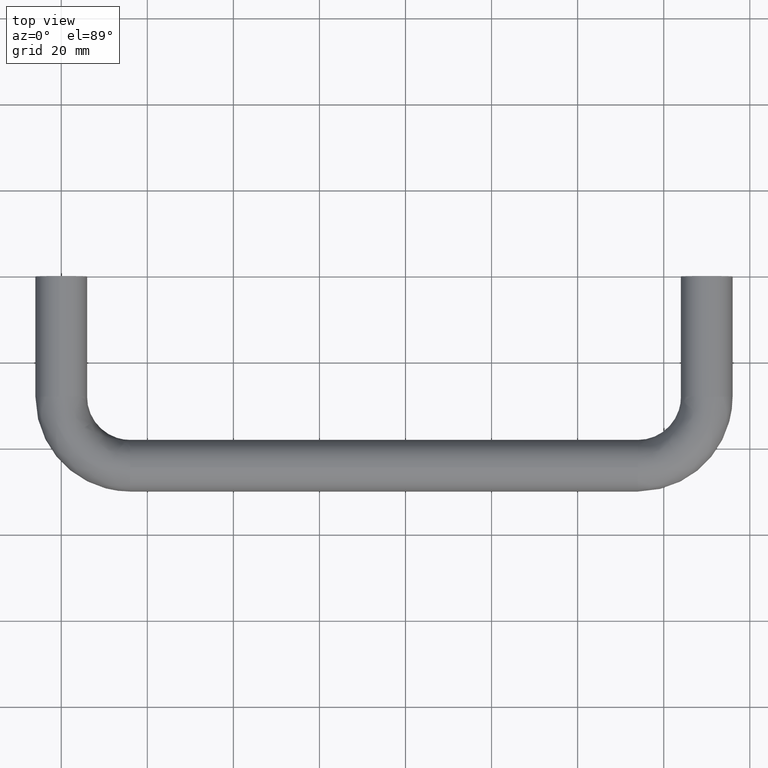
[diagram: clean part render]
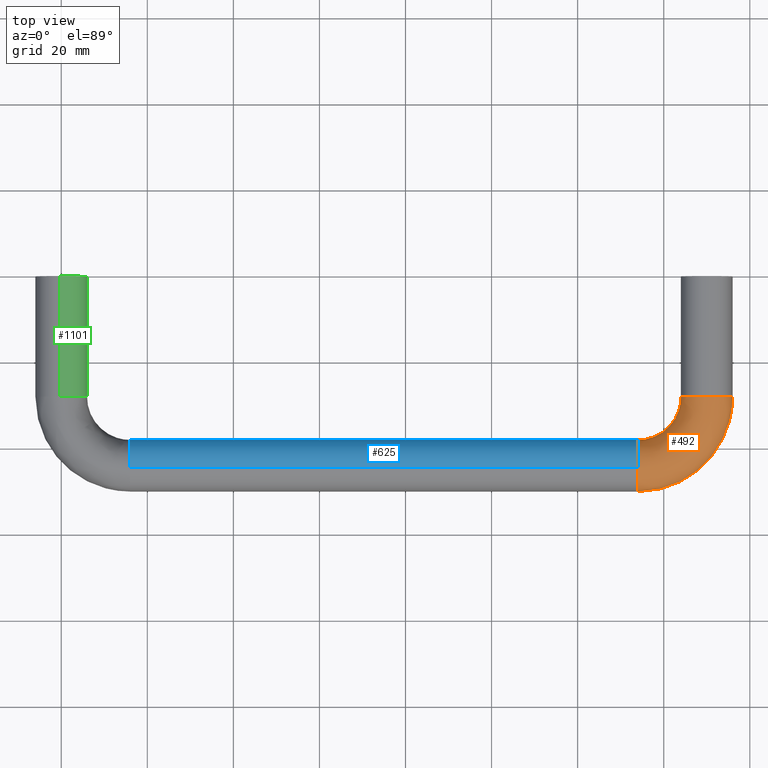
[diagram: same view with three faces highlighted in distinct colors, each labeled with its STEP entity id]
A machine part, top view with three faces highlighted in distinct colors.
Their STEP definitions:

[orange] entity #492 — the highlighted face is a freeform B-spline surface patch.
#295=CARTESIAN_POINT('',(144.0,-28.000000000368381,-4.420586E-016));
#296=VERTEX_POINT('',#295);
#312=CARTESIAN_POINT('',(150.470754574599310,-27.999985489720380,5.981504002379788));
#313=VERTEX_POINT('',#312);
#314=CARTESIAN_POINT('',(150.470754574599340,-27.999985489720387,5.981504002379788));
#315=CARTESIAN_POINT('',(150.235740642154520,-27.999986016738429,6.000000000000680));
#316=CARTESIAN_POINT('',(149.999999999983600,-27.999986545386118,6.000000000000666));
#317=CARTESIAN_POINT('',(144.000000000000060,-28.000000000368384,6.000000000000321));
#318=CARTESIAN_POINT('',(144.0,-28.000000000368381,-4.420586E-016));
#326=(BOUNDED_CURVE()B_SPLINE_CURVE(2,(#314,#315,#316,#317,#318),.UNSPECIFIED.,.F.,.U.)B_SPLINE_CURVE_WITH_KNOTS((3,2,3),(0.472662601251207,0.500000000000000,1.0),.UNSPECIFIED.)CURVE()GEOMETRIC_REPRESENTATION_ITEM()RATIONAL_B_SPLINE_CURVE((0.969723356156866,0.983986122572958,1.0,0.707106781186548,1.0))REPRESENTATION_ITEM(''));
#327=EDGE_CURVE('',#313,#296,#326,.T.);
#362=CARTESIAN_POINT('',(155.999999999967090,-27.999973090403870,-7.347638E-016));
#363=VERTEX_POINT('',#362);
#383=CARTESIAN_POINT('',(155.999999999967090,-27.999973090403870,-7.347638E-016));
#384=CARTESIAN_POINT('',(155.999999999967140,-27.999973090403873,5.546342949717099));
#385=CARTESIAN_POINT('',(150.470754574599310,-27.999985489720384,5.981504002379788));
#393=(BOUNDED_CURVE()B_SPLINE_CURVE(2,(#383,#384,#385),.UNSPECIFIED.,.F.,.U.)B_SPLINE_CURVE_WITH_KNOTS((3,3),(0.0,0.472662601251207),.UNSPECIFIED.)CURVE()GEOMETRIC_REPRESENTATION_ITEM()RATIONAL_B_SPLINE_CURVE((1.0,0.723120658613589,0.969723356156866))REPRESENTATION_ITEM(''));
#394=EDGE_CURVE('',#363,#313,#393,.T.);
#399=CARTESIAN_POINT('',(132.470154332437600,-49.946744000726859,-0.167740426151150));
#400=CARTESIAN_POINT('',(157.705853460307820,-51.705853460307821,-0.167740426151149));
#401=CARTESIAN_POINT('',(155.946744000726880,-26.470154332437591,-0.167740426151150));
#402=CARTESIAN_POINT('',(132.470154332437630,-49.946744000726845,-0.084358652198840));
#403=CARTESIAN_POINT('',(157.705853460307850,-51.705853460307829,-0.084358652198840));
#404=CARTESIAN_POINT('',(155.946744000726820,-26.470154332437588,-0.084358652198840));
#405=CARTESIAN_POINT('',(132.470154332437570,-49.946744000726852,5.999999999999997));
#406=CARTESIAN_POINT('',(157.705853460307820,-51.705853460307814,5.999999999999999));
#407=CARTESIAN_POINT('',(155.946744000726910,-26.470154332437588,5.999999999999998));
#408=CARTESIAN_POINT('',(132.887384969045510,-43.961268364164987,5.999999999999998));
#409=CARTESIAN_POINT('',(151.240620698405680,-45.240620698405699,5.999999999999998));
#410=CARTESIAN_POINT('',(149.961268364164990,-26.887384969045527,5.999999999999999));
#411=CARTESIAN_POINT('',(133.304615605653450,-37.975792727603107,5.999999999999997));
#412=CARTESIAN_POINT('',(144.775387936503590,-38.775387936503549,5.999999999999999));
#413=CARTESIAN_POINT('',(143.975792727603110,-27.304615605653442,5.999999999999998));
#414=CARTESIAN_POINT('',(133.304615605653510,-37.975792727603114,-0.084358652198840));
#415=CARTESIAN_POINT('',(144.775387936503560,-38.775387936503563,-0.084358652198840));
#416=CARTESIAN_POINT('',(143.975792727603080,-27.304615605653449,-0.084358652198840));
#417=CARTESIAN_POINT('',(133.304615605653420,-37.975792727603107,-0.167740426151150));
#418=CARTESIAN_POINT('',(144.775387936503590,-38.775387936503563,-0.167740426151150));
#419=CARTESIAN_POINT('',(143.975792727603140,-27.304615605653449,-0.167740426151150));
#427=(BOUNDED_SURFACE()B_SPLINE_SURFACE(2,2,((#399,#402,#405,#408,#411,#414,#417),(#400,#403,#406,#409,#412,#415,#418),(#401,#404,#407,#410,#413,#416,#419)),.UNSPECIFIED.,.F.,.F.,.U.)B_SPLINE_SURFACE_WITH_KNOTS((3,3),(3,1,2,1,3),(0.0,40.092296910875270),(0.0,0.198822509939086,10.139948006893400,20.081073503847708,20.279896013786800),.UNSPECIFIED.)GEOMETRIC_REPRESENTATION_ITEM()RATIONAL_B_SPLINE_SURFACE(((0.927078278878390,0.921710467872278,0.647952106560563,0.916342656866165,0.647952106560563,0.921710467872278,0.927078278878390),(0.608370985386885,0.604848499157232,0.425201701444961,0.601326012927580,0.425201701444961,0.604848499157232,0.608370985386885),(0.927078278878390,0.921710467872278,0.647952106560563,0.916342656866165,0.647952106560563,0.921710467872278,0.927078278878390)))REPRESENTATION_ITEM('')SURFACE());
#428=CARTESIAN_POINT('',(133.999973486176490,-49.999999999968040,-7.347638E-016));
#429=VERTEX_POINT('',#428);
#430=CARTESIAN_POINT('',(133.999973486176510,-49.999999999968033,-7.347638E-016));
#431=CARTESIAN_POINT('',(156.000026909636770,-50.000026513863915,-7.347638E-016));
#432=CARTESIAN_POINT('',(155.999999999967090,-27.999973090403863,-7.347638E-016));
#440=(BOUNDED_CURVE()B_SPLINE_CURVE(2,(#430,#431,#432),.UNSPECIFIED.,.F.,.U.)B_SPLINE_CURVE_WITH_KNOTS((3,3),(-1.734752043948219,-0.265247937358810),.UNSPECIFIED.)CURVE()GEOMETRIC_REPRESENTATION_ITEM()RATIONAL_B_SPLINE_CURVE((0.889030167379974,0.628638499101433,0.889030174004650))REPRESENTATION_ITEM(''));
#441=EDGE_CURVE('',#429,#363,#440,.T.);
#442=ORIENTED_EDGE('',*,*,#441,.T.);
#443=ORIENTED_EDGE('',*,*,#394,.T.);
#444=ORIENTED_EDGE('',*,*,#327,.T.);
#445=CARTESIAN_POINT('',(134.000000000131590,-38.0,-2.210293E-016));
#446=VERTEX_POINT('',#445);
#447=CARTESIAN_POINT('',(134.000000000131620,-37.999999999999993,-8.841173E-016));
#448=CARTESIAN_POINT('',(143.999999999631630,-37.999999999868358,-8.689584E-016));
#449=CARTESIAN_POINT('',(144.0,-28.000000000368374,-8.841173E-016));
#457=(BOUNDED_CURVE()B_SPLINE_CURVE(2,(#447,#448,#449),.UNSPECIFIED.,.F.,.U.)B_SPLINE_CURVE_WITH_KNOTS((3,3),(-1.734750791644724,-0.265249208379877),.UNSPECIFIED.)CURVE()GEOMETRIC_REPRESENTATION_ITEM()RATIONAL_B_SPLINE_CURVE((0.889029723571595,0.628638946226510,0.889029723562876))REPRESENTATION_ITEM(''));
#458=EDGE_CURVE('',#446,#296,#457,.T.);
#459=ORIENTED_EDGE('',*,*,#458,.F.);
#460=CARTESIAN_POINT('',(133.999985703023610,-44.470754574599333,5.981504002379809));
#461=VERTEX_POINT('',#460);
#462=CARTESIAN_POINT('',(133.999985703023640,-44.470754574599326,5.981504002379809));
#463=CARTESIAN_POINT('',(133.999986222286030,-44.235740642154759,6.000000000000660));
#464=CARTESIAN_POINT('',(133.999986743154100,-43.999999999984077,6.000000000000647));
#465=CARTESIAN_POINT('',(134.000000000131650,-38.000000000000021,6.000000000000312));
#466=CARTESIAN_POINT('',(134.000000000131590,-38.0,-2.210293E-016));
#474=(BOUNDED_CURVE()B_SPLINE_CURVE(2,(#462,#463,#464,#465,#466),.UNSPECIFIED.,.F.,.U.)B_SPLINE_CURVE_WITH_KNOTS((3,2,3),(0.472662601251237,0.500000000000000,1.0),.UNSPECIFIED.)CURVE()GEOMETRIC_REPRESENTATION_ITEM()RATIONAL_B_SPLINE_CURVE((0.969723356156897,0.983986122572976,1.0,0.707106781186548,1.0))REPRESENTATION_ITEM(''));
#475=EDGE_CURVE('',#461,#446,#474,.T.);
#476=ORIENTED_EDGE('',*,*,#475,.F.);
#477=CARTESIAN_POINT('',(133.999973486176490,-49.999999999968040,-7.347638E-016));
#478=CARTESIAN_POINT('',(133.999973486176540,-49.999999999968075,5.546342949717582));
#479=CARTESIAN_POINT('',(133.999985703023580,-44.470754574599319,5.981504002379809));
#487=(BOUNDED_CURVE()B_SPLINE_CURVE(2,(#477,#478,#479),.UNSPECIFIED.,.F.,.U.)B_SPLINE_CURVE_WITH_KNOTS((3,3),(0.0,0.472662601251237),.UNSPECIFIED.)CURVE()GEOMETRIC_REPRESENTATION_ITEM()RATIONAL_B_SPLINE_CURVE((1.0,0.723120658613572,0.969723356156897))REPRESENTATION_ITEM(''));
#488=EDGE_CURVE('',#429,#461,#487,.T.);
#489=ORIENTED_EDGE('',*,*,#488,.F.);
#490=EDGE_LOOP('',(#442,#443,#444,#459,#476,#489));
#491=FACE_OUTER_BOUND('',#490,.T.);
#492=ADVANCED_FACE('',(#491),#427,.T.);

[blue] entity #625 — the highlighted face is a freeform B-spline surface patch.
#445=CARTESIAN_POINT('',(134.000000000131590,-38.0,-2.210293E-016));
#446=VERTEX_POINT('',#445);
#460=CARTESIAN_POINT('',(133.999985703023610,-44.470754574599333,5.981504002379809));
#461=VERTEX_POINT('',#460);
#462=CARTESIAN_POINT('',(133.999985703023640,-44.470754574599326,5.981504002379809));
#463=CARTESIAN_POINT('',(133.999986222286030,-44.235740642154759,6.000000000000660));
#464=CARTESIAN_POINT('',(133.999986743154100,-43.999999999984077,6.000000000000647));
#465=CARTESIAN_POINT('',(134.000000000131650,-38.000000000000021,6.000000000000312));
#466=CARTESIAN_POINT('',(134.000000000131590,-38.0,-2.210293E-016));
#474=(BOUNDED_CURVE()B_SPLINE_CURVE(2,(#462,#463,#464,#465,#466),.UNSPECIFIED.,.F.,.U.)B_SPLINE_CURVE_WITH_KNOTS((3,2,3),(0.472662601251237,0.500000000000000,1.0),.UNSPECIFIED.)CURVE()GEOMETRIC_REPRESENTATION_ITEM()RATIONAL_B_SPLINE_CURVE((0.969723356156897,0.983986122572976,1.0,0.707106781186548,1.0))REPRESENTATION_ITEM(''));
#475=EDGE_CURVE('',#461,#446,#474,.T.);
#523=CARTESIAN_POINT('',(133.999987783284500,-43.529245425400553,-5.981504002381058));
#524=VERTEX_POINT('',#523);
#540=CARTESIAN_POINT('',(134.000000000131590,-38.0,-2.210293E-016));
#541=CARTESIAN_POINT('',(134.000000000131620,-37.999999999999993,-5.546342949746755));
#542=CARTESIAN_POINT('',(133.999987783284550,-43.529245425400489,-5.981504002381636));
#550=(BOUNDED_CURVE()B_SPLINE_CURVE(2,(#540,#541,#542),.UNSPECIFIED.,.F.,.U.)B_SPLINE_CURVE_WITH_KNOTS((3,3),(0.0,0.472662601253055),.UNSPECIFIED.)CURVE()GEOMETRIC_REPRESENTATION_ITEM()RATIONAL_B_SPLINE_CURVE((1.0,0.723120658612506,0.969723356158795))REPRESENTATION_ITEM(''));
#551=EDGE_CURVE('',#446,#524,#550,.T.);
#559=CARTESIAN_POINT('',(13.049999999604820,-43.529245425632929,-5.981504002398766));
#560=CARTESIAN_POINT('',(13.049999999604820,-37.547741423234164,-5.510749428031693));
#561=CARTESIAN_POINT('',(13.049999999604820,-38.018495997601242,0.470754574367073));
#562=CARTESIAN_POINT('',(13.049999999604820,-38.489250571968299,6.452258576765838));
#563=CARTESIAN_POINT('',(13.049999999604820,-44.470754574367071,5.981504002398766));
#564=CARTESIAN_POINT('',(137.023750000144790,-43.529245425632922,-5.981504002398766));
#565=CARTESIAN_POINT('',(137.023750000144790,-37.547741423234150,-5.510749428031693));
#566=CARTESIAN_POINT('',(137.023750000144790,-38.018495997601221,0.470754574367073));
#567=CARTESIAN_POINT('',(137.023750000144790,-38.489250571968284,6.452258576765838));
#568=CARTESIAN_POINT('',(137.023750000144790,-44.470754574367056,5.981504002398766));
#576=(BOUNDED_SURFACE()B_SPLINE_SURFACE(2,1,((#559,#564),(#560,#565),(#561,#566),(#562,#567),(#563,#568)),.UNSPECIFIED.,.F.,.F.,.U.)B_SPLINE_SURFACE_WITH_KNOTS((3,2,3),(2,2),(0.0,9.941125496954275,19.882250993908549),(0.0,123.973750000539990),.UNSPECIFIED.)GEOMETRIC_REPRESENTATION_ITEM()RATIONAL_B_SPLINE_SURFACE(((1.0,1.0),(0.707106781186548,0.707106781186548),(1.0,1.0),(0.707106781186548,0.707106781186548),(1.0,1.0)))REPRESENTATION_ITEM('')SURFACE());
#577=ORIENTED_EDGE('',*,*,#551,.T.);
#578=CARTESIAN_POINT('',(15.999999999718140,-43.529245425400610,-5.981504002380483));
#579=VERTEX_POINT('',#578);
#580=CARTESIAN_POINT('',(15.999999999718140,-43.529245425400610,-5.981504002380483));
#581=CARTESIAN_POINT('',(133.999987783284500,-43.529245425400553,-5.981504002381058));
#582=QUASI_UNIFORM_CURVE('',1,(#580,#581),.UNSPECIFIED.,.F.,.U.);
#583=EDGE_CURVE('',#579,#524,#582,.T.);
#584=ORIENTED_EDGE('',*,*,#583,.F.);
#585=CARTESIAN_POINT('',(15.999999999617669,-38.0,-4.410686E-016));
#586=VERTEX_POINT('',#585);
#587=CARTESIAN_POINT('',(15.999999999617669,-38.0,-4.410686E-016));
#588=CARTESIAN_POINT('',(15.999999999617668,-38.0,-5.546342949733146));
#589=CARTESIAN_POINT('',(15.999999999718137,-43.529245425400610,-5.981504002380483));
#597=(BOUNDED_CURVE()B_SPLINE_CURVE(2,(#587,#588,#589),.UNSPECIFIED.,.F.,.U.)B_SPLINE_CURVE_WITH_KNOTS((3,3),(0.0,0.472662601252217),.UNSPECIFIED.)CURVE()GEOMETRIC_REPRESENTATION_ITEM()RATIONAL_B_SPLINE_CURVE((1.0,0.723120658612998,0.969723356157920))REPRESENTATION_ITEM(''));
#598=EDGE_CURVE('',#586,#579,#597,.T.);
#599=ORIENTED_EDGE('',*,*,#598,.F.);
#600=CARTESIAN_POINT('',(15.999999999735239,-44.470754574599397,5.981504002380483));
#601=VERTEX_POINT('',#600);
#602=CARTESIAN_POINT('',(15.999999999735243,-44.470754574599397,5.981504002380483));
#603=CARTESIAN_POINT('',(15.999999999730976,-44.235740642162725,5.999999999999999));
#604=CARTESIAN_POINT('',(15.999999999726690,-44.000000000000007,5.999999999999999));
#605=CARTESIAN_POINT('',(15.999999999617666,-38.0,6.0));
#606=CARTESIAN_POINT('',(15.999999999617669,-38.0,-4.410686E-016));
#614=(BOUNDED_CURVE()B_SPLINE_CURVE(2,(#602,#603,#604,#605,#606),.UNSPECIFIED.,.F.,.U.)B_SPLINE_CURVE_WITH_KNOTS((3,2,3),(0.472662601252218,0.500000000000000,1.0),.UNSPECIFIED.)CURVE()GEOMETRIC_REPRESENTATION_ITEM()RATIONAL_B_SPLINE_CURVE((0.969723356157921,0.983986122573550,1.0,0.707106781186548,1.0))REPRESENTATION_ITEM(''));
#615=EDGE_CURVE('',#601,#586,#614,.T.);
#616=ORIENTED_EDGE('',*,*,#615,.F.);
#617=CARTESIAN_POINT('',(15.999999999735239,-44.470754574599397,5.981504002380483));
#618=CARTESIAN_POINT('',(133.999985703023610,-44.470754574599333,5.981504002379809));
#619=QUASI_UNIFORM_CURVE('',1,(#617,#618),.UNSPECIFIED.,.F.,.U.);
#620=EDGE_CURVE('',#601,#461,#619,.T.);
#621=ORIENTED_EDGE('',*,*,#620,.T.);
#622=ORIENTED_EDGE('',*,*,#475,.T.);
#623=EDGE_LOOP('',(#577,#584,#599,#616,#621,#622));
#624=FACE_OUTER_BOUND('',#623,.T.);
#625=ADVANCED_FACE('',(#624),#576,.T.);

[green] entity #1101 — the highlighted face is a freeform B-spline surface patch.
#727=CARTESIAN_POINT('',(6.000000000000004,-28.000000000032060,-2.205343E-016));
#728=VERTEX_POINT('',#727);
#742=CARTESIAN_POINT('',(-0.470754574599390,-28.000000000054708,5.981504002380483));
#743=VERTEX_POINT('',#742);
#744=CARTESIAN_POINT('',(-0.470754574599390,-28.000000000054705,5.981504002380483));
#745=CARTESIAN_POINT('',(-0.235740642162715,-28.000000000053888,6.0));
#746=CARTESIAN_POINT('',(3.428898E-015,-28.000000000053060,5.999999999999999));
#747=CARTESIAN_POINT('',(6.000000000000004,-28.000000000032060,6.0));
#748=CARTESIAN_POINT('',(6.000000000000004,-28.000000000032060,-2.205343E-016));
#756=(BOUNDED_CURVE()B_SPLINE_CURVE(2,(#744,#745,#746,#747,#748),.UNSPECIFIED.,.F.,.U.)B_SPLINE_CURVE_WITH_KNOTS((3,2,3),(0.472662601252217,0.500000000000000,1.0),.UNSPECIFIED.)CURVE()GEOMETRIC_REPRESENTATION_ITEM()RATIONAL_B_SPLINE_CURVE((0.969723356157920,0.983986122573550,1.0,0.707106781186548,1.0))REPRESENTATION_ITEM(''));
#757=EDGE_CURVE('',#743,#728,#756,.T.);
#805=CARTESIAN_POINT('',(0.470754574599396,-28.000000000051418,-5.981504002380483));
#806=VERTEX_POINT('',#805);
#822=CARTESIAN_POINT('',(6.000000000000004,-28.000000000032060,-2.205343E-016));
#823=CARTESIAN_POINT('',(6.000000000000004,-28.000000000032060,-5.546342949733154));
#824=CARTESIAN_POINT('',(0.470754574599397,-28.000000000051415,-5.981504002380484));
#832=(BOUNDED_CURVE()B_SPLINE_CURVE(2,(#822,#823,#824),.UNSPECIFIED.,.F.,.U.)B_SPLINE_CURVE_WITH_KNOTS((3,3),(0.0,0.472662601252217),.UNSPECIFIED.)CURVE()GEOMETRIC_REPRESENTATION_ITEM()RATIONAL_B_SPLINE_CURVE((1.0,0.723120658612997,0.969723356157920))REPRESENTATION_ITEM(''));
#833=EDGE_CURVE('',#728,#806,#832,.T.);
#1035=CARTESIAN_POINT('',(0.470754574367073,0.700000000001853,-5.981504002398766));
#1036=CARTESIAN_POINT('',(6.452258576765839,0.700000000001854,-5.510749428031692));
#1037=CARTESIAN_POINT('',(5.981504002398766,0.700000000001854,0.470754574367073));
#1038=CARTESIAN_POINT('',(5.510749428031692,0.700000000001853,6.452258576765839));
#1039=CARTESIAN_POINT('',(-0.470754574367073,0.700000000001853,5.981504002398766));
#1040=CARTESIAN_POINT('',(0.470754574367077,-28.717500000075962,-5.981504002398766));
#1041=CARTESIAN_POINT('',(6.452258576765843,-28.717500000075955,-5.510749428031692));
#1042=CARTESIAN_POINT('',(5.981504002398769,-28.717500000075962,0.470754574367073));
#1043=CARTESIAN_POINT('',(5.510749428031697,-28.717500000075955,6.452258576765839));
#1044=CARTESIAN_POINT('',(-0.470754574367070,-28.717500000075962,5.981504002398766));
#1052=(BOUNDED_SURFACE()B_SPLINE_SURFACE(2,1,((#1035,#1040),(#1036,#1041),(#1037,#1042),(#1038,#1043),(#1039,#1044)),.UNSPECIFIED.,.F.,.F.,.U.)B_SPLINE_SURFACE_WITH_KNOTS((3,2,3),(2,2),(0.0,9.941125496954280,19.882250993908560),(0.0,29.417500000077808),.UNSPECIFIED.)GEOMETRIC_REPRESENTATION_ITEM()RATIONAL_B_SPLINE_SURFACE(((1.0,1.0),(0.707106781186548,0.707106781186548),(1.0,1.0),(0.707106781186548,0.707106781186548),(1.0,1.0)))REPRESENTATION_ITEM('')SURFACE());
#1053=ORIENTED_EDGE('',*,*,#833,.T.);
#1054=CARTESIAN_POINT('',(0.470754574599393,-2.220446E-016,-5.981504002380483));
#1055=VERTEX_POINT('',#1054);
#1056=CARTESIAN_POINT('',(0.470754574599393,-2.220446E-016,-5.981504002380483));
#1057=CARTESIAN_POINT('',(0.470754574599396,-28.000000000051418,-5.981504002380483));
#1058=QUASI_UNIFORM_CURVE('',1,(#1056,#1057),.UNSPECIFIED.,.F.,.U.);
#1059=EDGE_CURVE('',#1055,#806,#1058,.T.);
#1060=ORIENTED_EDGE('',*,*,#1059,.F.);
#1061=CARTESIAN_POINT('',(6.0,0.0,0.0));
#1062=VERTEX_POINT('',#1061);
#1063=CARTESIAN_POINT('',(6.0,0.0,0.0));
#1064=CARTESIAN_POINT('',(6.0,0.0,-5.546342949733154));
#1065=CARTESIAN_POINT('',(0.470754574599393,0.0,-5.981504002380484));
#1073=(BOUNDED_CURVE()B_SPLINE_CURVE(2,(#1063,#1064,#1065),.UNSPECIFIED.,.F.,.U.)B_SPLINE_CURVE_WITH_KNOTS((3,3),(0.0,0.236331300626109),.UNSPECIFIED.)CURVE()GEOMETRIC_REPRESENTATION_ITEM()RATIONAL_B_SPLINE_CURVE((1.0,0.723120658612997,0.969723356157920))REPRESENTATION_ITEM(''));
#1074=EDGE_CURVE('',#1062,#1055,#1073,.T.);
#1075=ORIENTED_EDGE('',*,*,#1074,.F.);
#1076=CARTESIAN_POINT('',(-0.470754574599393,-3.330669E-016,5.981504002380483));
#1077=VERTEX_POINT('',#1076);
#1078=CARTESIAN_POINT('',(-0.470754574599392,0.0,5.981504002380484));
#1079=CARTESIAN_POINT('',(-0.235740642162718,0.0,6.0));
#1080=CARTESIAN_POINT('',(0.0,0.0,6.0));
#1081=CARTESIAN_POINT('',(6.0,0.0,6.0));
#1082=CARTESIAN_POINT('',(6.0,0.0,0.0));
#1090=(BOUNDED_CURVE()B_SPLINE_CURVE(2,(#1078,#1079,#1080,#1081,#1082),.UNSPECIFIED.,.F.,.U.)B_SPLINE_CURVE_WITH_KNOTS((3,2,3),(0.736331300626109,0.750000000000000,1.0),.UNSPECIFIED.)CURVE()GEOMETRIC_REPRESENTATION_ITEM()RATIONAL_B_SPLINE_CURVE((0.969723356157920,0.983986122573550,1.0,0.707106781186548,1.0))REPRESENTATION_ITEM(''));
#1091=EDGE_CURVE('',#1077,#1062,#1090,.T.);
#1092=ORIENTED_EDGE('',*,*,#1091,.F.);
#1093=CARTESIAN_POINT('',(-0.470754574599393,-3.330669E-016,5.981504002380483));
#1094=CARTESIAN_POINT('',(-0.470754574599390,-28.000000000054708,5.981504002380483));
#1095=QUASI_UNIFORM_CURVE('',1,(#1093,#1094),.UNSPECIFIED.,.F.,.U.);
#1096=EDGE_CURVE('',#1077,#743,#1095,.T.);
#1097=ORIENTED_EDGE('',*,*,#1096,.T.);
#1098=ORIENTED_EDGE('',*,*,#757,.T.);
#1099=EDGE_LOOP('',(#1053,#1060,#1075,#1092,#1097,#1098));
#1100=FACE_OUTER_BOUND('',#1099,.T.);
#1101=ADVANCED_FACE('',(#1100),#1052,.T.);